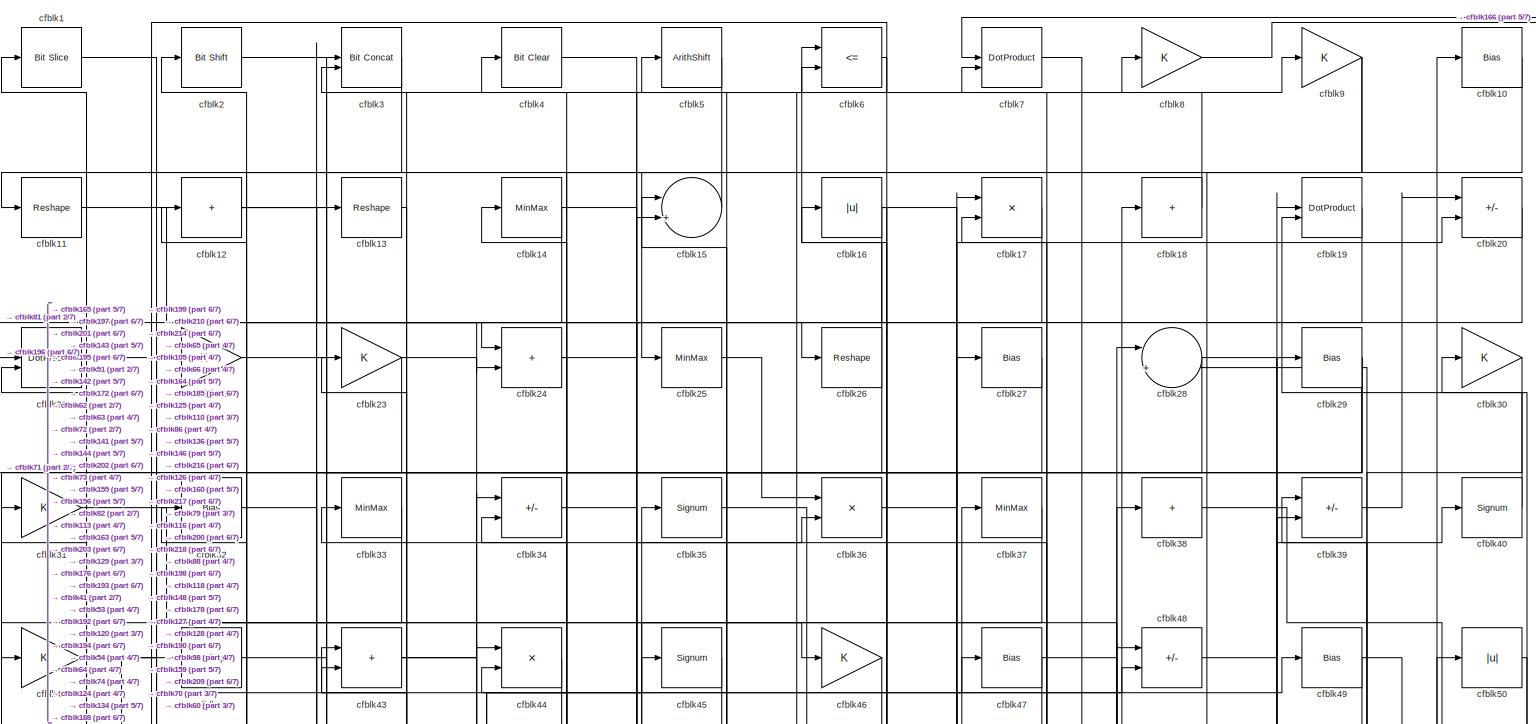
[diagram: root canvas - part 1/7, full width, top band]
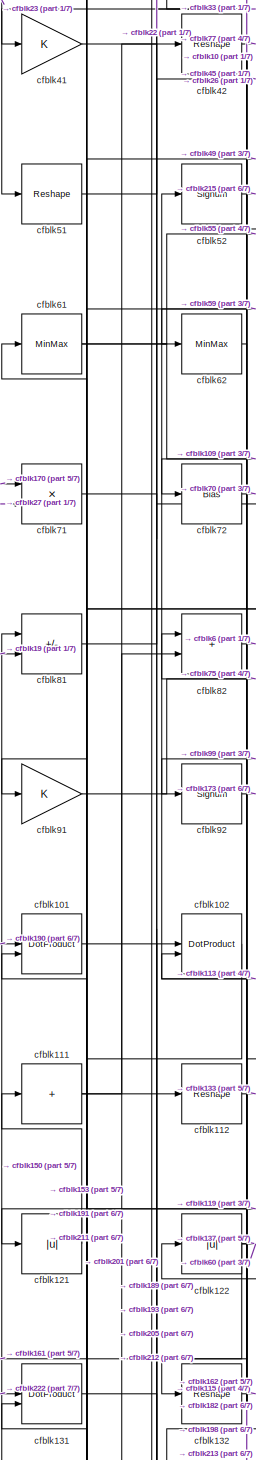
[diagram: root canvas - part 2/7, middle left region]
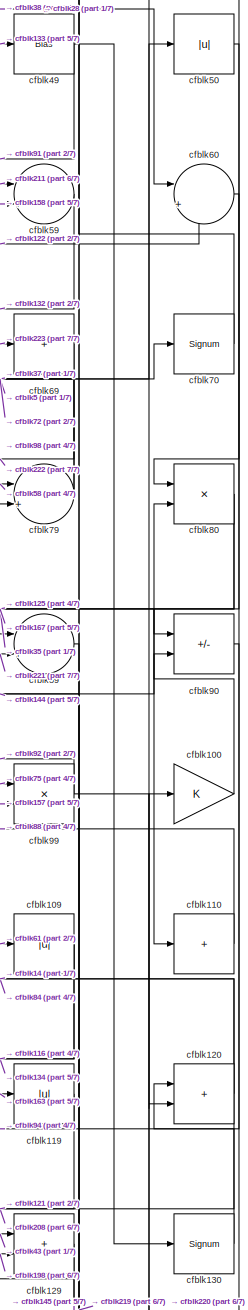
[diagram: root canvas - part 3/7, middle right region]
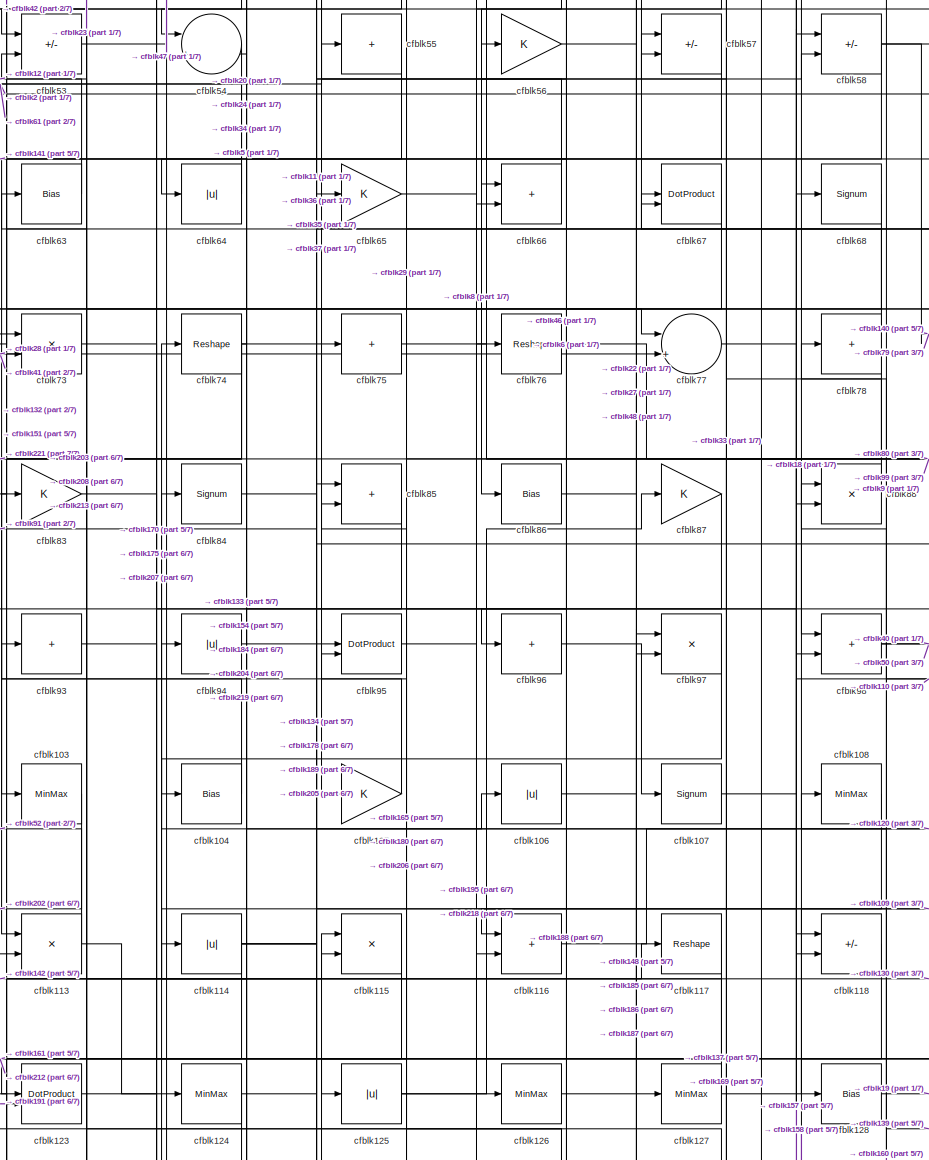
[diagram: root canvas - part 4/7, central region]
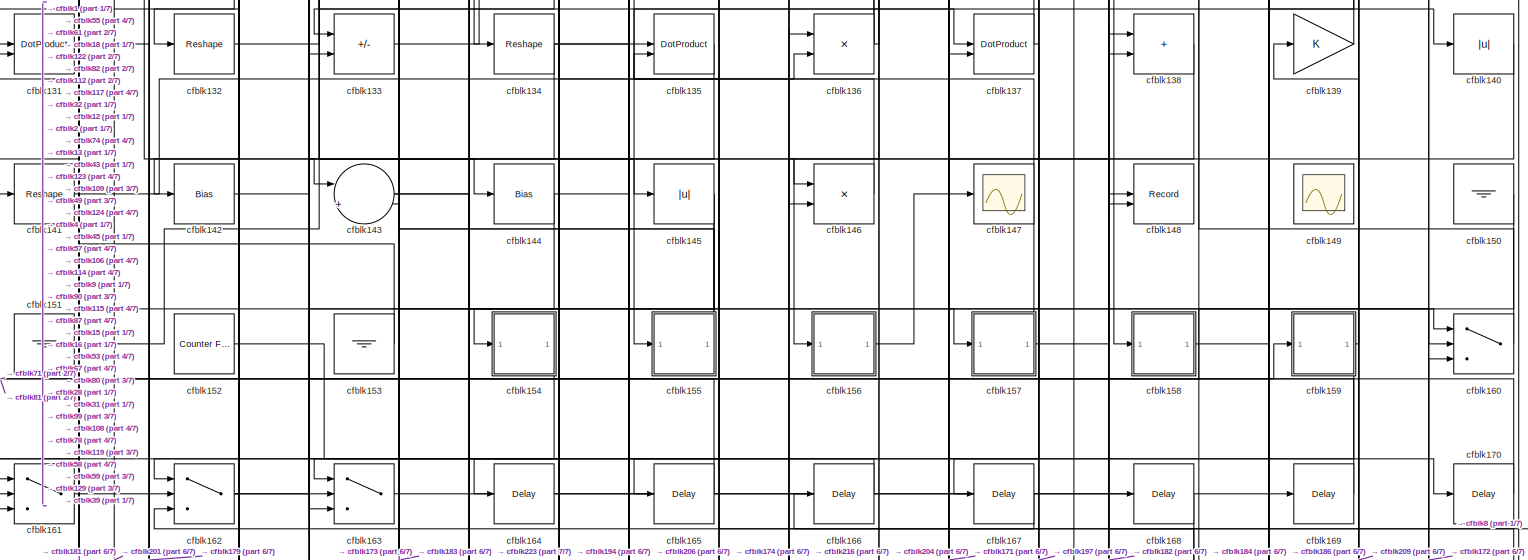
[diagram: root canvas - part 5/7, full width, middle band]
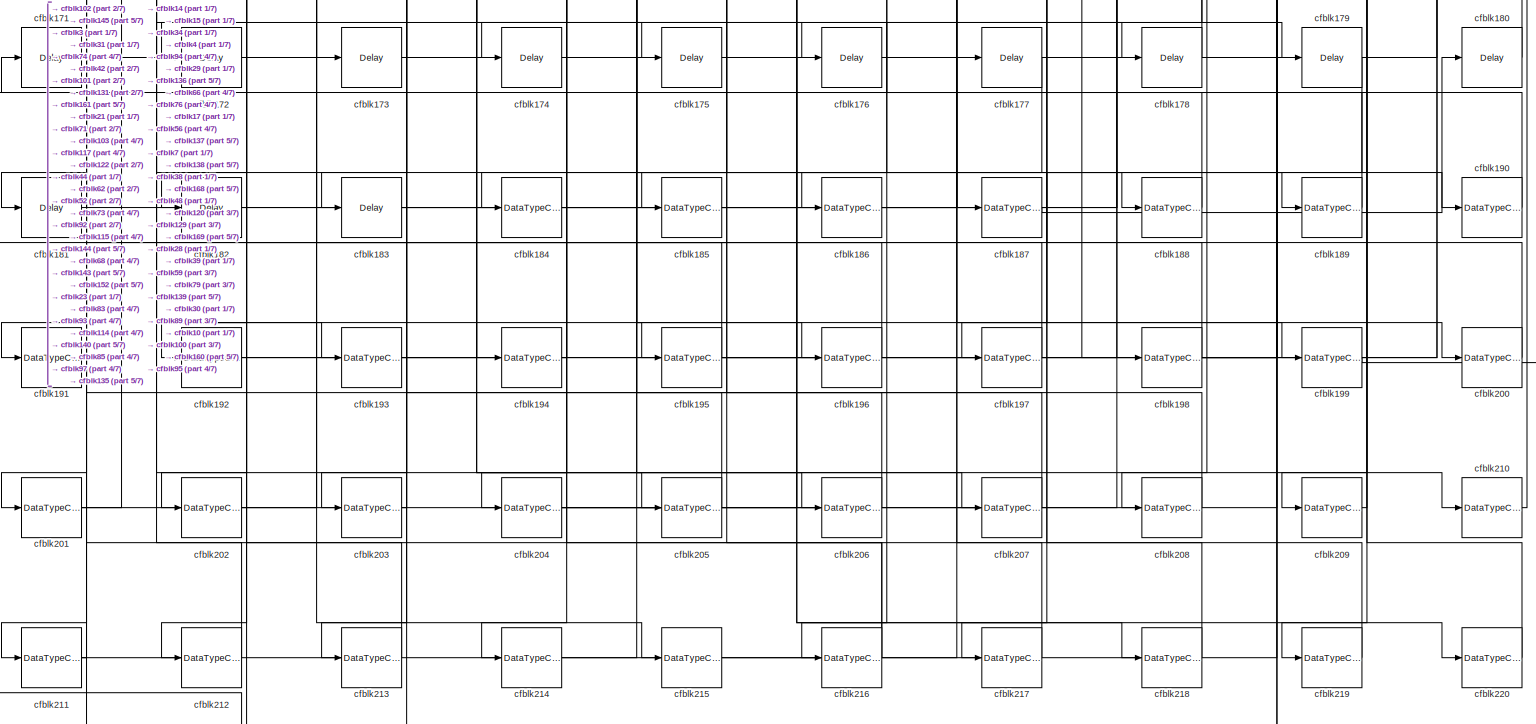
[diagram: root canvas - part 6/7, full width, bottom band]
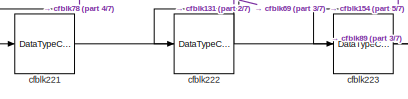
[diagram: root canvas - part 7/7, bottom left region]
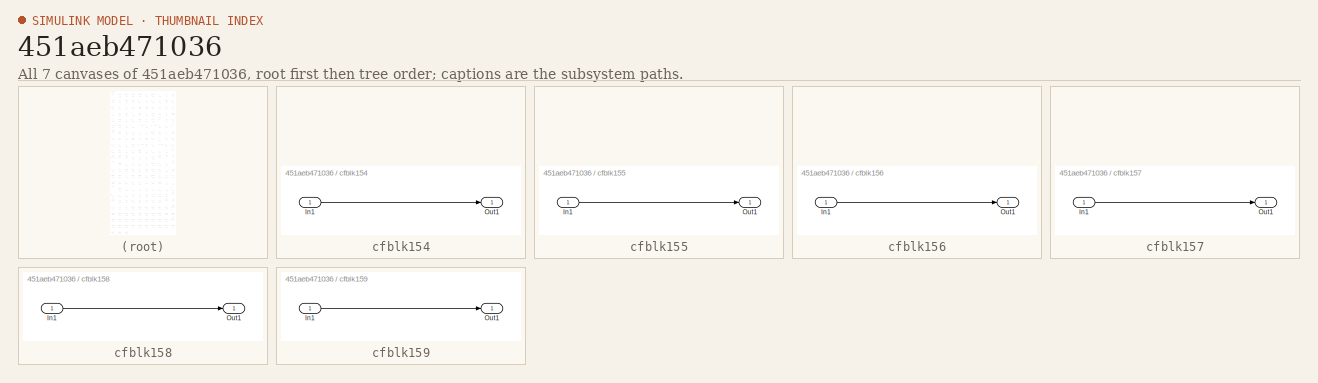
[diagram: thumbnail index - all 7 canvases of the model, root first then tree order]
MODEL slx_451aeb471036
KIND model
CONFIG AbsTol = auto
CONFIG EnableMultiTasking = off
CONFIG FixedStep = auto
CONFIG MaxStep = auto
CONFIG MinStep = auto
CONFIG RelTol = 1e-3
CONFIG SampleTimeConstraint = Unconstrained
CONFIG SolverName = VariableStepAuto
CONFIG StartTime = 0.0
CONFIG StopTime = 10.0
BLOCK [Reference] cfblk1  REF=hdlsllib/Logic and Bit
Operations/Bit Slice
  SourceBlock = hdlsllib/Logic and Bit\nOperations/Bit Slice
  SourceType = Bit Slice
BLOCK [Bias] cfblk10
  Bias = 0.0
  SaturateOnIntegerOverflow = off
BLOCK [Gain] cfblk100
BLOCK [DotProduct] cfblk101
  OutDataTypeStr = Inherit: Inherit via internal rule
BLOCK [DotProduct] cfblk102
  OutDataTypeStr = Inherit: Inherit via internal rule
BLOCK [MinMax] cfblk103
BLOCK [Bias] cfblk104
  Bias = 0.0
  SaturateOnIntegerOverflow = off
BLOCK [Gain] cfblk105
BLOCK [Abs] cfblk106
  SaturateOnIntegerOverflow = off
BLOCK [Signum] cfblk107
BLOCK [MinMax] cfblk108
BLOCK [Abs] cfblk109
  SaturateOnIntegerOverflow = off
BLOCK [Reshape] cfblk11
BLOCK [Sum] cfblk110
  IconShape = rectangular
  Inputs = +
BLOCK [Sum] cfblk111
  IconShape = rectangular
  Inputs = +
BLOCK [Reshape] cfblk112
BLOCK [Product] cfblk113
  Inputs = */
  RndMeth = Zero
  SaturateOnIntegerOverflow = on
BLOCK [Abs] cfblk114
  SaturateOnIntegerOverflow = off
BLOCK [Product] cfblk115
  Inputs = */
  RndMeth = Zero
  SaturateOnIntegerOverflow = on
BLOCK [Sum] cfblk116
  IconShape = rectangular
BLOCK [Reshape] cfblk117
BLOCK [Sum] cfblk118
  IconShape = rectangular
  Inputs = +-
BLOCK [Abs] cfblk119
  SaturateOnIntegerOverflow = off
BLOCK [Sum] cfblk12
  IconShape = rectangular
  Inputs = +
BLOCK [Sum] cfblk120
  IconShape = rectangular
BLOCK [Abs] cfblk121
  SaturateOnIntegerOverflow = off
BLOCK [Abs] cfblk122
  SaturateOnIntegerOverflow = off
BLOCK [DotProduct] cfblk123
  OutDataTypeStr = Inherit: Inherit via internal rule
BLOCK [MinMax] cfblk124
BLOCK [Abs] cfblk125
  SaturateOnIntegerOverflow = off
BLOCK [MinMax] cfblk126
BLOCK [MinMax] cfblk127
BLOCK [Bias] cfblk128
  Bias = 0.0
  SaturateOnIntegerOverflow = off
BLOCK [Sum] cfblk129
  IconShape = rectangular
BLOCK [Reshape] cfblk13
BLOCK [Signum] cfblk130
BLOCK [DotProduct] cfblk131
  OutDataTypeStr = Inherit: Inherit via internal rule
BLOCK [Reshape] cfblk132
BLOCK [Sum] cfblk133
  IconShape = rectangular
  Inputs = +-
BLOCK [Reshape] cfblk134
BLOCK [DotProduct] cfblk135
  OutDataTypeStr = Inherit: Inherit via internal rule
BLOCK [Product] cfblk136
  Inputs = */
  RndMeth = Zero
  SaturateOnIntegerOverflow = on
BLOCK [DotProduct] cfblk137
  OutDataTypeStr = Inherit: Inherit via internal rule
BLOCK [Sum] cfblk138
  IconShape = rectangular
BLOCK [Gain] cfblk139
BLOCK [MinMax] cfblk14
BLOCK [Abs] cfblk140
  SaturateOnIntegerOverflow = off
BLOCK [Reshape] cfblk141
BLOCK [Bias] cfblk142
  Bias = 0.0
  SaturateOnIntegerOverflow = off
BLOCK [Sum] cfblk143
  Inputs = |++
BLOCK [Bias] cfblk144
  Bias = 0.0
  SaturateOnIntegerOverflow = off
BLOCK [Abs] cfblk145
  SaturateOnIntegerOverflow = off
BLOCK [Product] cfblk146
  Inputs = */
  RndMeth = Zero
  SaturateOnIntegerOverflow = on
BLOCK [Scope] cfblk147
  Floating = off
  NumInputPorts = 1
  ScopeSpecificationString = Simulink.scopes.TimeScopeBlockCfg('CurrentConfiguration', extmgr.ConfigurationSet(extmgr.Configuration('Core','General UI',true),extmgr.Configuration('Core','Source UI',true),extmgr.Configuration('Sources','WiredSimulink',true,'DataLoggingVariableName','ScopeData2','DataLoggingSaveFormat','Array','DataLoggingLimitDataPoints',true,'DataLoggingDecimation','1'),extmgr.Configuration('Visuals','Time Do...<+868ch>
BLOCK [Record] cfblk148
  CompatibilityTag = XY
  FileSettingsInternal = {"entries":[{"content":{"excelSettings":{"content":{},"type":"Streamout.ExcelSettings"}},"type":"Streamout.FileSettingStorage","uuid":""}],"packageUris":["http:\/\/schema.mathworks.com\/mf0\/streamout_blocks\/R2020a"],"version":"1.0"}
  Layout = [1 1]
  SignalsInternal = {"entries":[{"content":{"signals":[{"content":{"blockPath":[],"dimensions":[1],"domain":"","lineColor":"#a2142f","plots":[1],"port":1,"signalID":1259,"signalName":"XY Graph:1"},"type":"RecordBlkView.Signal","uuid":""},{"content":{"blockPath":[],"dimensions":[1],"domain":"","lineColor":"#139fff","plots":[1],"port":2,"signalID":1262,"signalName":"XY Graph:2"},"type":"RecordBlkView.Signal","uuid":""}...<+146ch>
  VisualizationBindings = {"xyplotplugin":{"info":[{"series":[{"bindingParametersList":[{"parameter":"X-Axis","signalID":1259,"signalName":"XY Graph:1"},{"parameter":"Y-Axis","signalID":1262,"signalName":"XY Graph:2"}],"seriesID":9767}],"subplotID":1}]}}
  st = -1
BLOCK [Scope] cfblk149
  Floating = on
  NumInputPorts = 1
  ScopeSpecificationString = Simulink.scopes.TimeScopeBlockCfg('CurrentConfiguration', extmgr.ConfigurationSet(extmgr.Configuration('Core','General UI',true,'FigureColor',[0.156862745098039 0.156862745098039 0.156862745098039]),extmgr.Configuration('Core','Source UI',true),extmgr.Configuration('Sources','WiredSimulink',true,'DataLoggingVariableName','ScopeData1','DataLoggingSaveFormat','StructureWithTime','DataLoggingLimitDat...<+2713ch>
BLOCK [Sum] cfblk15
  Inputs = |++
BLOCK [Ground] cfblk150
BLOCK [Ground] cfblk151
BLOCK [Reference] cfblk152  REF=hdlsllib/Sources/Counter
Free-Running
  SourceBlock = hdlsllib/Sources/Counter\nFree-Running
  SourceType = Counter Free-Running
BLOCK [Ground] cfblk153
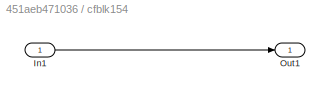
BLOCK [SubSystem] cfblk154
  LibrarySourceBlock = hdlsllib/Ports &\nSubsystems/Subsystem
BLOCK [Inport] cfblk154/In1
BLOCK [Outport] cfblk154/Out1
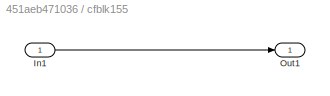
BLOCK [SubSystem] cfblk155
  LibrarySourceBlock = hdlsllib/Ports &\nSubsystems/Subsystem
BLOCK [Inport] cfblk155/In1
BLOCK [Outport] cfblk155/Out1
BLOCK [SubSystem] cfblk156
  LibrarySourceBlock = hdlsllib/Ports &\nSubsystems/Subsystem
BLOCK [Inport] cfblk156/In1
BLOCK [Outport] cfblk156/Out1
BLOCK [SubSystem] cfblk157
  LibrarySourceBlock = hdlsllib/Ports &\nSubsystems/Subsystem
BLOCK [Inport] cfblk157/In1
BLOCK [Outport] cfblk157/Out1
BLOCK [SubSystem] cfblk158
  LibrarySourceBlock = hdlsllib/Ports &\nSubsystems/Subsystem
BLOCK [Inport] cfblk158/In1
BLOCK [Outport] cfblk158/Out1
BLOCK [SubSystem] cfblk159
  LibrarySourceBlock = hdlsllib/Ports &\nSubsystems/Subsystem
BLOCK [Inport] cfblk159/In1
BLOCK [Outport] cfblk159/Out1
BLOCK [Abs] cfblk16
  SaturateOnIntegerOverflow = off
BLOCK [Switch] cfblk160
  InputSameDT = off
  SaturateOnIntegerOverflow = off
BLOCK [Switch] cfblk161
  InputSameDT = off
  SaturateOnIntegerOverflow = off
BLOCK [Switch] cfblk162
  InputSameDT = off
  SaturateOnIntegerOverflow = off
BLOCK [Switch] cfblk163
  InputSameDT = off
  SaturateOnIntegerOverflow = off
BLOCK [Delay] cfblk164
  InputPortMap = u0
  SampleTime = 1
BLOCK [Delay] cfblk165
  InputPortMap = u0
  SampleTime = 1
BLOCK [Delay] cfblk166
  InputPortMap = u0
  SampleTime = 1
BLOCK [Delay] cfblk167
  InputPortMap = u0
  SampleTime = 1
BLOCK [Delay] cfblk168
  InputPortMap = u0
  SampleTime = 1
BLOCK [Delay] cfblk169
  InputPortMap = u0
  SampleTime = 1
BLOCK [Product] cfblk17
  Inputs = */
  RndMeth = Zero
  SaturateOnIntegerOverflow = on
BLOCK [Delay] cfblk170
  InputPortMap = u0
  SampleTime = 1
BLOCK [Delay] cfblk171
  InputPortMap = u0
  SampleTime = 1
BLOCK [Delay] cfblk172
  InputPortMap = u0
  SampleTime = 1
BLOCK [Delay] cfblk173
  InputPortMap = u0
  SampleTime = 1
BLOCK [Delay] cfblk174
  InputPortMap = u0
  SampleTime = 1
BLOCK [Delay] cfblk175
  InputPortMap = u0
  SampleTime = 1
BLOCK [Delay] cfblk176
  InputPortMap = u0
  SampleTime = 1
BLOCK [Delay] cfblk177
  InputPortMap = u0
  SampleTime = 1
BLOCK [Delay] cfblk178
  InputPortMap = u0
  SampleTime = 1
BLOCK [Delay] cfblk179
  InputPortMap = u0
  SampleTime = 1
BLOCK [Sum] cfblk18
  IconShape = rectangular
  Inputs = +
BLOCK [Delay] cfblk180
  InputPortMap = u0
  SampleTime = 1
BLOCK [Delay] cfblk181
  InputPortMap = u0
  SampleTime = 1
BLOCK [Delay] cfblk182
  InputPortMap = u0
  SampleTime = 1
BLOCK [Delay] cfblk183
  InputPortMap = u0
  SampleTime = 1
BLOCK [DataTypeConversion] cfblk184
  OutDataTypeStr = uint8
  RndMeth = Floor
  SaturateOnIntegerOverflow = off
BLOCK [DataTypeConversion] cfblk185
  OutDataTypeStr = uint8
  RndMeth = Floor
  SaturateOnIntegerOverflow = off
BLOCK [DataTypeConversion] cfblk186
  OutDataTypeStr = uint8
  RndMeth = Floor
  SaturateOnIntegerOverflow = off
BLOCK [DataTypeConversion] cfblk187
  OutDataTypeStr = uint8
  RndMeth = Floor
  SaturateOnIntegerOverflow = off
BLOCK [DataTypeConversion] cfblk188
  OutDataTypeStr = uint8
  RndMeth = Floor
  SaturateOnIntegerOverflow = off
BLOCK [DataTypeConversion] cfblk189
  OutDataTypeStr = uint8
  RndMeth = Floor
  SaturateOnIntegerOverflow = off
BLOCK [DotProduct] cfblk19
  OutDataTypeStr = Inherit: Inherit via internal rule
BLOCK [DataTypeConversion] cfblk190
  OutDataTypeStr = uint8
  RndMeth = Floor
  SaturateOnIntegerOverflow = off
BLOCK [DataTypeConversion] cfblk191
  OutDataTypeStr = uint8
  RndMeth = Floor
  SaturateOnIntegerOverflow = off
BLOCK [DataTypeConversion] cfblk192
  RndMeth = Floor
  SaturateOnIntegerOverflow = off
BLOCK [DataTypeConversion] cfblk193
  OutDataTypeStr = uint8
  RndMeth = Floor
  SaturateOnIntegerOverflow = off
BLOCK [DataTypeConversion] cfblk194
  OutDataTypeStr = uint8
  RndMeth = Floor
  SaturateOnIntegerOverflow = off
BLOCK [DataTypeConversion] cfblk195
  RndMeth = Floor
  SaturateOnIntegerOverflow = off
BLOCK [DataTypeConversion] cfblk196
  OutDataTypeStr = uint8
  RndMeth = Floor
  SaturateOnIntegerOverflow = off
BLOCK [DataTypeConversion] cfblk197
  OutDataTypeStr = uint8
  RndMeth = Floor
  SaturateOnIntegerOverflow = off
BLOCK [DataTypeConversion] cfblk198
  RndMeth = Floor
  SaturateOnIntegerOverflow = off
BLOCK [DataTypeConversion] cfblk199
  OutDataTypeStr = uint8
  RndMeth = Floor
  SaturateOnIntegerOverflow = off
BLOCK [Reference] cfblk2  REF=hdlsllib/Logic and Bit
Operations/Bit Shift
  SourceBlock = hdlsllib/Logic and Bit\nOperations/Bit Shift
  SourceType = Bit Shift
BLOCK [Sum] cfblk20
  IconShape = rectangular
  Inputs = +-
BLOCK [DataTypeConversion] cfblk200
  OutDataTypeStr = uint8
  RndMeth = Floor
  SaturateOnIntegerOverflow = off
BLOCK [DataTypeConversion] cfblk201
  RndMeth = Floor
  SaturateOnIntegerOverflow = off
BLOCK [DataTypeConversion] cfblk202
  OutDataTypeStr = uint8
  RndMeth = Floor
  SaturateOnIntegerOverflow = off
BLOCK [DataTypeConversion] cfblk203
  OutDataTypeStr = uint8
  RndMeth = Floor
  SaturateOnIntegerOverflow = off
BLOCK [DataTypeConversion] cfblk204
  RndMeth = Floor
  SaturateOnIntegerOverflow = off
BLOCK [DataTypeConversion] cfblk205
  OutDataTypeStr = uint8
  RndMeth = Floor
  SaturateOnIntegerOverflow = off
BLOCK [DataTypeConversion] cfblk206
  OutDataTypeStr = uint8
  RndMeth = Floor
  SaturateOnIntegerOverflow = off
BLOCK [DataTypeConversion] cfblk207
  OutDataTypeStr = uint8
  RndMeth = Floor
  SaturateOnIntegerOverflow = off
BLOCK [DataTypeConversion] cfblk208
  OutDataTypeStr = uint8
  RndMeth = Floor
  SaturateOnIntegerOverflow = off
BLOCK [DataTypeConversion] cfblk209
  OutDataTypeStr = uint8
  RndMeth = Floor
  SaturateOnIntegerOverflow = off
BLOCK [DotProduct] cfblk21
  OutDataTypeStr = Inherit: Inherit via internal rule
BLOCK [DataTypeConversion] cfblk210
  OutDataTypeStr = uint8
  RndMeth = Floor
  SaturateOnIntegerOverflow = off
BLOCK [DataTypeConversion] cfblk211
  RndMeth = Floor
  SaturateOnIntegerOverflow = off
BLOCK [DataTypeConversion] cfblk212
  OutDataTypeStr = uint8
  RndMeth = Floor
  SaturateOnIntegerOverflow = off
BLOCK [DataTypeConversion] cfblk213
  OutDataTypeStr = uint8
  RndMeth = Floor
  SaturateOnIntegerOverflow = off
BLOCK [DataTypeConversion] cfblk214
  OutDataTypeStr = uint8
  RndMeth = Floor
  SaturateOnIntegerOverflow = off
BLOCK [DataTypeConversion] cfblk215
  OutDataTypeStr = uint8
  RndMeth = Floor
  SaturateOnIntegerOverflow = off
BLOCK [DataTypeConversion] cfblk216
  RndMeth = Floor
  SaturateOnIntegerOverflow = off
BLOCK [DataTypeConversion] cfblk217
  OutDataTypeStr = uint8
  RndMeth = Floor
  SaturateOnIntegerOverflow = off
BLOCK [DataTypeConversion] cfblk218
  OutDataTypeStr = uint8
  RndMeth = Floor
  SaturateOnIntegerOverflow = off
BLOCK [DataTypeConversion] cfblk219
  OutDataTypeStr = uint8
  RndMeth = Floor
  SaturateOnIntegerOverflow = off
BLOCK [Gain] cfblk22
BLOCK [DataTypeConversion] cfblk220
  OutDataTypeStr = uint8
  RndMeth = Floor
  SaturateOnIntegerOverflow = off
BLOCK [DataTypeConversion] cfblk221
  OutDataTypeStr = uint8
  RndMeth = Floor
  SaturateOnIntegerOverflow = off
BLOCK [DataTypeConversion] cfblk222
  OutDataTypeStr = uint8
  RndMeth = Floor
  SaturateOnIntegerOverflow = off
BLOCK [DataTypeConversion] cfblk223
  OutDataTypeStr = uint8
  RndMeth = Floor
  SaturateOnIntegerOverflow = off
BLOCK [Gain] cfblk23
BLOCK [Sum] cfblk24
  IconShape = rectangular
BLOCK [MinMax] cfblk25
BLOCK [Reshape] cfblk26
BLOCK [Bias] cfblk27
  Bias = 0.0
  SaturateOnIntegerOverflow = off
BLOCK [Sum] cfblk28
  Inputs = |++
BLOCK [Bias] cfblk29
  Bias = 0.0
  SaturateOnIntegerOverflow = off
BLOCK [Reference] cfblk3  REF=hdlsllib/Logic and Bit
Operations/Bit Concat
  SourceBlock = hdlsllib/Logic and Bit\nOperations/Bit Concat
  SourceType = Bit Concat
BLOCK [Gain] cfblk30
BLOCK [Gain] cfblk31
BLOCK [Bias] cfblk32
  Bias = 0.0
  SaturateOnIntegerOverflow = off
BLOCK [MinMax] cfblk33
BLOCK [Sum] cfblk34
  IconShape = rectangular
  Inputs = +-
BLOCK [Signum] cfblk35
BLOCK [Product] cfblk36
  Inputs = */
  RndMeth = Zero
  SaturateOnIntegerOverflow = on
BLOCK [MinMax] cfblk37
BLOCK [Sum] cfblk38
  IconShape = rectangular
  Inputs = +
BLOCK [Sum] cfblk39
  IconShape = rectangular
  Inputs = +-
BLOCK [Reference] cfblk4  REF=simulink/Logic and Bit
Operations/Bit Clear
  LibrarySourceBlock = hdlsllib/Logic and Bit\nOperations/Bit Clear
  SourceBlock = simulink/Logic and Bit\nOperations/Bit Clear
  SourceType = Bit Clear
BLOCK [Signum] cfblk40
BLOCK [Gain] cfblk41
BLOCK [Reshape] cfblk42
BLOCK [Sum] cfblk43
  IconShape = rectangular
BLOCK [Product] cfblk44
  Inputs = */
  RndMeth = Zero
  SaturateOnIntegerOverflow = on
BLOCK [Signum] cfblk45
BLOCK [Gain] cfblk46
BLOCK [Bias] cfblk47
  Bias = 0.0
  SaturateOnIntegerOverflow = off
BLOCK [Sum] cfblk48
  IconShape = rectangular
  Inputs = +-
BLOCK [Bias] cfblk49
  Bias = 0.0
  SaturateOnIntegerOverflow = off
BLOCK [ArithShift] cfblk5
  BitShiftNumber = 8
  InputPortMap = u0
BLOCK [Abs] cfblk50
  SaturateOnIntegerOverflow = off
BLOCK [Reshape] cfblk51
BLOCK [Signum] cfblk52
BLOCK [Sum] cfblk53
  IconShape = rectangular
  Inputs = +-
BLOCK [Sum] cfblk54
  Inputs = |++
BLOCK [Sum] cfblk55
  IconShape = rectangular
  Inputs = +
BLOCK [Gain] cfblk56
BLOCK [Sum] cfblk57
  IconShape = rectangular
  Inputs = +-
BLOCK [Sum] cfblk58
  IconShape = rectangular
  Inputs = +-
BLOCK [Sum] cfblk59
  Inputs = |++
BLOCK [RelationalOperator] cfblk6
  InputSameDT = off
  Operator = <=
  OutDataTypeStr = boolean
BLOCK [Sum] cfblk60
  Inputs = |++
BLOCK [MinMax] cfblk61
BLOCK [MinMax] cfblk62
BLOCK [Bias] cfblk63
  Bias = 0.0
  SaturateOnIntegerOverflow = off
BLOCK [Abs] cfblk64
  SaturateOnIntegerOverflow = off
BLOCK [Gain] cfblk65
BLOCK [Sum] cfblk66
  IconShape = rectangular
BLOCK [DotProduct] cfblk67
  OutDataTypeStr = Inherit: Inherit via internal rule
BLOCK [Signum] cfblk68
BLOCK [Sum] cfblk69
  IconShape = rectangular
  Inputs = +
BLOCK [DotProduct] cfblk7
  OutDataTypeStr = Inherit: Inherit via internal rule
BLOCK [Signum] cfblk70
BLOCK [Product] cfblk71
  Inputs = */
  RndMeth = Zero
  SaturateOnIntegerOverflow = on
BLOCK [Bias] cfblk72
  Bias = 0.0
  SaturateOnIntegerOverflow = off
BLOCK [Product] cfblk73
  Inputs = */
  RndMeth = Zero
  SaturateOnIntegerOverflow = on
BLOCK [Reshape] cfblk74
BLOCK [Sum] cfblk75
  IconShape = rectangular
  Inputs = +
BLOCK [Reshape] cfblk76
BLOCK [Sum] cfblk77
  Inputs = |++
BLOCK [Sum] cfblk78
  IconShape = rectangular
  Inputs = +
BLOCK [Sum] cfblk79
  Inputs = |++
BLOCK [Gain] cfblk8
BLOCK [Product] cfblk80
  Inputs = */
  RndMeth = Zero
  SaturateOnIntegerOverflow = on
BLOCK [Sum] cfblk81
  IconShape = rectangular
  Inputs = +-
BLOCK [Sum] cfblk82
  IconShape = rectangular
BLOCK [Gain] cfblk83
BLOCK [Signum] cfblk84
BLOCK [Sum] cfblk85
  IconShape = rectangular
BLOCK [Bias] cfblk86
  Bias = 0.0
  SaturateOnIntegerOverflow = off
BLOCK [Gain] cfblk87
BLOCK [Product] cfblk88
  Inputs = */
  RndMeth = Zero
  SaturateOnIntegerOverflow = on
BLOCK [Sum] cfblk89
  Inputs = |++
BLOCK [Gain] cfblk9
BLOCK [Sum] cfblk90
  IconShape = rectangular
  Inputs = +-
BLOCK [Gain] cfblk91
BLOCK [Signum] cfblk92
BLOCK [Sum] cfblk93
  IconShape = rectangular
  Inputs = +
BLOCK [Abs] cfblk94
  SaturateOnIntegerOverflow = off
BLOCK [DotProduct] cfblk95
  OutDataTypeStr = Inherit: Inherit via internal rule
BLOCK [Sum] cfblk96
  IconShape = rectangular
  Inputs = +
BLOCK [Product] cfblk97
  Inputs = */
  RndMeth = Zero
  SaturateOnIntegerOverflow = on
BLOCK [Sum] cfblk98
  IconShape = rectangular
BLOCK [Product] cfblk99
  Inputs = */
  RndMeth = Zero
  SaturateOnIntegerOverflow = on
LINE cfblk100:1 -> cfblk80:2
LINE cfblk101:1 -> cfblk189:1
LINE cfblk102:1 -> cfblk211:1
LINE cfblk103:1 -> cfblk202:1
LINE cfblk104:1 -> cfblk83:1
LINE cfblk105:1 -> cfblk23:1
LINE cfblk106:1 -> cfblk148:2
LINE cfblk107:1 -> cfblk68:1
LINE cfblk108:1 -> cfblk158:1
NET cfblk109:1 -> cfblk116:1, cfblk134:1
LINE cfblk10:1 -> cfblk72:1
LINE cfblk110:1 -> cfblk88:1
NET cfblk111:1 -> cfblk112:1, cfblk82:2
LINE cfblk112:1 -> cfblk133:2
NET cfblk113:1 -> cfblk124:1, cfblk52:1
NET cfblk114:1 -> cfblk157:1, cfblk161:1, cfblk58:2, cfblk67:1
LINE cfblk115:1 -> cfblk203:1
LINE cfblk116:1 -> cfblk58:1
LINE cfblk117:1 -> cfblk212:1
LINE cfblk118:1 -> cfblk123:1
LINE cfblk119:1 -> cfblk121:1
LINE cfblk11:1 -> cfblk65:1
NET cfblk120:1 -> cfblk14:1, cfblk208:1, cfblk84:1
LINE cfblk121:1 -> cfblk111:1
NET cfblk122:1 -> cfblk137:1, cfblk161:3, cfblk60:2
LINE cfblk123:1 -> cfblk170:1
NET cfblk124:1 -> cfblk133:1, cfblk36:2
NET cfblk125:1 -> cfblk87:1, cfblk8:1
LINE cfblk126:1 -> cfblk48:2
NET cfblk127:1 -> cfblk18:1, cfblk63:1
LINE cfblk128:1 -> cfblk19:1
LINE cfblk129:1 -> cfblk145:1
NET cfblk12:1 -> cfblk155:1, cfblk24:1, cfblk24:2
LINE cfblk130:1 -> cfblk94:1
LINE cfblk131:1 -> cfblk205:1
LINE cfblk132:1 -> cfblk115:2
LINE cfblk133:1 -> cfblk49:1
NET cfblk134:1 -> cfblk106:1, cfblk163:3, cfblk9:1
LINE cfblk135:1 -> cfblk162:2
NET cfblk136:1 -> cfblk15:1, cfblk16:1, cfblk32:1
NET cfblk137:1 -> cfblk197:1, cfblk53:2
LINE cfblk138:1 -> cfblk146:2
LINE cfblk139:1 -> cfblk108:1
LINE cfblk13:1 -> cfblk163:1
LINE cfblk140:1 -> cfblk174:1
LINE cfblk141:1 -> cfblk13:1
LINE cfblk142:1 -> cfblk117:1
NET cfblk143:1 -> cfblk160:1, cfblk206:1
NET cfblk144:1 -> cfblk183:1, cfblk90:2
NET cfblk145:1 -> cfblk163:2, cfblk181:1
LINE cfblk146:1 -> cfblk4:1
NET cfblk14:1 -> cfblk172:1, cfblk210:1
LINE cfblk150:1 -> cfblk81:1
LINE cfblk151:1 -> cfblk74:1
LINE cfblk152:1 -> cfblk194:1
LINE cfblk153:1 -> cfblk61:1
LINE cfblk154/In1:1 -> cfblk154/Out1:1
LINE cfblk154:1 -> cfblk223:1
LINE cfblk155/In1:1 -> cfblk155/Out1:1
NET cfblk155:1 -> cfblk43:1, cfblk43:2
LINE cfblk156/In1:1 -> cfblk156/Out1:1
LINE cfblk156:1 -> cfblk147:1
LINE cfblk157/In1:1 -> cfblk157/Out1:1
NET cfblk157:1 -> cfblk115:1, cfblk99:2
LINE cfblk158/In1:1 -> cfblk158/Out1:1
LINE cfblk158:1 -> cfblk59:2
LINE cfblk159/In1:1 -> cfblk159/Out1:1
NET cfblk159:1 -> cfblk161:2, cfblk39:1
LINE cfblk15:1 -> cfblk11:1
LINE cfblk160:1 -> cfblk78:1
LINE cfblk161:1 -> cfblk179:1
NET cfblk162:1 -> cfblk136:2, cfblk159:1, cfblk82:1
LINE cfblk163:1 -> cfblk119:1
LINE cfblk164:1 -> cfblk28:1
LINE cfblk165:1 -> cfblk1:1
LINE cfblk166:1 -> cfblk162:1
LINE cfblk167:1 -> cfblk162:3
LINE cfblk168:1 -> cfblk186:1
LINE cfblk169:1 -> cfblk67:2
NET cfblk16:1 -> cfblk142:1, cfblk146:1, cfblk160:2
LINE cfblk170:1 -> cfblk71:1
LINE cfblk171:1 -> cfblk137:2
LINE cfblk172:1 -> cfblk160:3
LINE cfblk173:1 -> cfblk143:2
LINE cfblk174:1 -> cfblk196:1
LINE cfblk175:1 -> cfblk220:1
LINE cfblk176:1 -> cfblk200:1
LINE cfblk177:1 -> cfblk214:1
LINE cfblk178:1 -> cfblk48:1
LINE cfblk179:1 -> cfblk217:1
LINE cfblk17:1 -> cfblk216:1
LINE cfblk180:1 -> cfblk95:2
LINE cfblk181:1 -> cfblk136:1
LINE cfblk182:1 -> cfblk138:2
LINE cfblk183:1 -> cfblk135:1
LINE cfblk184:1 -> cfblk138:1
LINE cfblk185:1 -> cfblk97:1
LINE cfblk186:1 -> cfblk97:2
LINE cfblk187:1 -> cfblk180:1
LINE cfblk188:1 -> cfblk56:1
LINE cfblk189:1 -> cfblk95:1
LINE cfblk18:1 -> cfblk143:1
LINE cfblk190:1 -> cfblk101:1
LINE cfblk191:1 -> cfblk101:2
NET cfblk192:1 -> cfblk10:1, cfblk38:1
LINE cfblk193:1 -> cfblk44:1
LINE cfblk194:1 -> cfblk44:2
NET cfblk195:1 -> cfblk39:2, cfblk73:1, cfblk76:1
LINE cfblk196:1 -> cfblk21:1
LINE cfblk197:1 -> cfblk21:2
NET cfblk198:1 -> cfblk100:1, cfblk122:1, cfblk129:2, cfblk79:2
LINE cfblk199:1 -> cfblk7:1
LINE cfblk19:1 -> cfblk81:2
LINE cfblk1:1 -> cfblk46:1
LINE cfblk200:1 -> cfblk7:2
NET cfblk201:1 -> cfblk169:1, cfblk42:1
LINE cfblk202:1 -> cfblk3:1
LINE cfblk203:1 -> cfblk3:2
NET cfblk204:1 -> cfblk168:1, cfblk66:2
LINE cfblk205:1 -> cfblk85:1
LINE cfblk206:1 -> cfblk85:2
LINE cfblk207:1 -> cfblk171:1
LINE cfblk208:1 -> cfblk93:1
LINE cfblk209:1 -> cfblk139:1
LINE cfblk20:1 -> cfblk64:1
LINE cfblk210:1 -> cfblk30:1
NET cfblk211:1 -> cfblk131:2, cfblk59:1
LINE cfblk212:1 -> cfblk102:1
LINE cfblk213:1 -> cfblk102:2
LINE cfblk214:1 -> cfblk15:2
LINE cfblk215:1 -> cfblk177:1
NET cfblk216:1 -> cfblk135:2, cfblk31:1
LINE cfblk217:1 -> cfblk17:1
LINE cfblk218:1 -> cfblk17:2
LINE cfblk219:1 -> cfblk114:1
LINE cfblk21:1 -> cfblk195:1
LINE cfblk220:1 -> cfblk89:1
LINE cfblk221:1 -> cfblk89:2
LINE cfblk222:1 -> cfblk131:1
LINE cfblk223:1 -> cfblk69:1
LINE cfblk22:1 -> cfblk127:1
NET cfblk23:1 -> cfblk176:1, cfblk41:1
NET cfblk24:1 -> cfblk26:1, cfblk54:2
LINE cfblk25:1 -> cfblk36:1
NET cfblk26:1 -> cfblk62:1, cfblk6:2
LINE cfblk27:1 -> cfblk71:2
NET cfblk28:1 -> cfblk190:1, cfblk73:2
NET cfblk29:1 -> cfblk113:2, cfblk185:1, cfblk53:1
LINE cfblk2:1 -> cfblk156:1
LINE cfblk30:1 -> cfblk209:1
LINE cfblk31:1 -> cfblk148:1
LINE cfblk32:1 -> cfblk144:1
LINE cfblk33:1 -> cfblk51:1
LINE cfblk34:1 -> cfblk188:1
LINE cfblk35:1 -> cfblk110:1
LINE cfblk36:1 -> cfblk20:2
LINE cfblk37:1 -> cfblk105:1
LINE cfblk38:1 -> cfblk60:1
LINE cfblk39:1 -> cfblk20:1
LINE cfblk3:1 -> cfblk201:1
LINE cfblk40:1 -> cfblk19:2
LINE cfblk41:1 -> cfblk77:2
LINE cfblk42:1 -> cfblk77:1
NET cfblk43:1 -> cfblk129:1, cfblk34:1
LINE cfblk44:1 -> cfblk192:1
LINE cfblk45:1 -> cfblk164:1
LINE cfblk46:1 -> cfblk86:1
NET cfblk47:1 -> cfblk116:2, cfblk118:1
LINE cfblk48:1 -> cfblk29:1
NET cfblk49:1 -> cfblk130:1, cfblk91:1
LINE cfblk4:1 -> cfblk199:1
LINE cfblk50:1 -> cfblk80:1
LINE cfblk51:1 -> cfblk45:1
LINE cfblk52:1 -> cfblk215:1
LINE cfblk53:1 -> cfblk47:1
LINE cfblk54:1 -> cfblk113:1
LINE cfblk55:1 -> cfblk141:1
LINE cfblk56:1 -> cfblk187:1
LINE cfblk57:1 -> cfblk154:1
NET cfblk58:1 -> cfblk104:1, cfblk140:1, cfblk79:1
LINE cfblk59:1 -> cfblk132:1
LINE cfblk5:1 -> cfblk54:1
LINE cfblk60:1 -> cfblk90:1
NET cfblk61:1 -> cfblk109:1, cfblk55:1
LINE cfblk62:1 -> cfblk182:1
LINE cfblk63:1 -> cfblk12:1
LINE cfblk64:1 -> cfblk2:1
LINE cfblk65:1 -> cfblk126:1
LINE cfblk66:1 -> cfblk35:1
LINE cfblk67:1 -> cfblk96:1
LINE cfblk68:1 -> cfblk213:1
LINE cfblk69:1 -> cfblk222:1
LINE cfblk6:1 -> cfblk66:1
LINE cfblk70:1 -> cfblk28:2
LINE cfblk71:1 -> cfblk193:1
LINE cfblk72:1 -> cfblk70:1
LINE cfblk73:1 -> cfblk98:2
NET cfblk74:1 -> cfblk103:1, cfblk123:2, cfblk191:1, cfblk34:2, cfblk57:1
LINE cfblk75:1 -> cfblk99:1
LINE cfblk76:1 -> cfblk98:1
LINE cfblk77:1 -> cfblk88:2
NET cfblk78:1 -> cfblk221:1, cfblk57:2
NET cfblk79:1 -> cfblk37:1, cfblk5:1
LINE cfblk7:1 -> cfblk198:1
NET cfblk80:1 -> cfblk125:1, cfblk167:1
LINE cfblk81:1 -> cfblk22:1
LINE cfblk82:1 -> cfblk6:1
LINE cfblk83:1 -> cfblk175:1
LINE cfblk84:1 -> cfblk118:2
LINE cfblk85:1 -> cfblk204:1
LINE cfblk86:1 -> cfblk27:1
LINE cfblk87:1 -> cfblk165:1
LINE cfblk88:1 -> cfblk33:1
LINE cfblk89:1 -> cfblk219:1
LINE cfblk8:1 -> cfblk166:1
LINE cfblk90:1 -> cfblk120:1
LINE cfblk91:1 -> cfblk75:1
LINE cfblk92:1 -> cfblk173:1
LINE cfblk93:1 -> cfblk207:1
LINE cfblk94:1 -> cfblk178:1
LINE cfblk95:1 -> cfblk218:1
LINE cfblk96:1 -> cfblk107:1
LINE cfblk97:1 -> cfblk184:1
NET cfblk98:1 -> cfblk40:1, cfblk50:1
NET cfblk99:1 -> cfblk120:2, cfblk92:1
NET cfblk9:1 -> cfblk128:1, cfblk25:1
note: NET lines group one-source signal fan-out (src -> all destinations, sorted); 1:1 wires keep LINE
